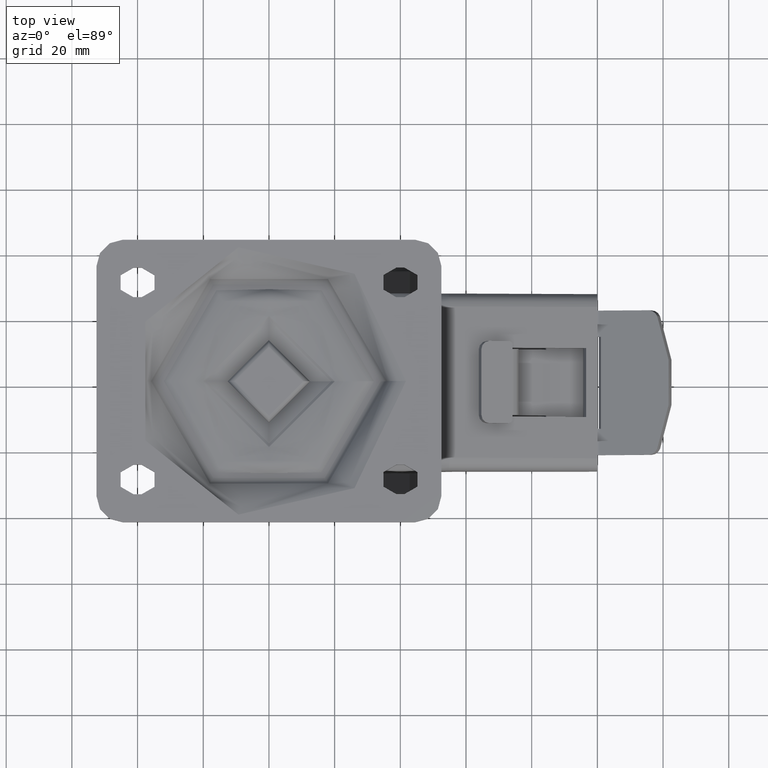
[diagram: clean part render]
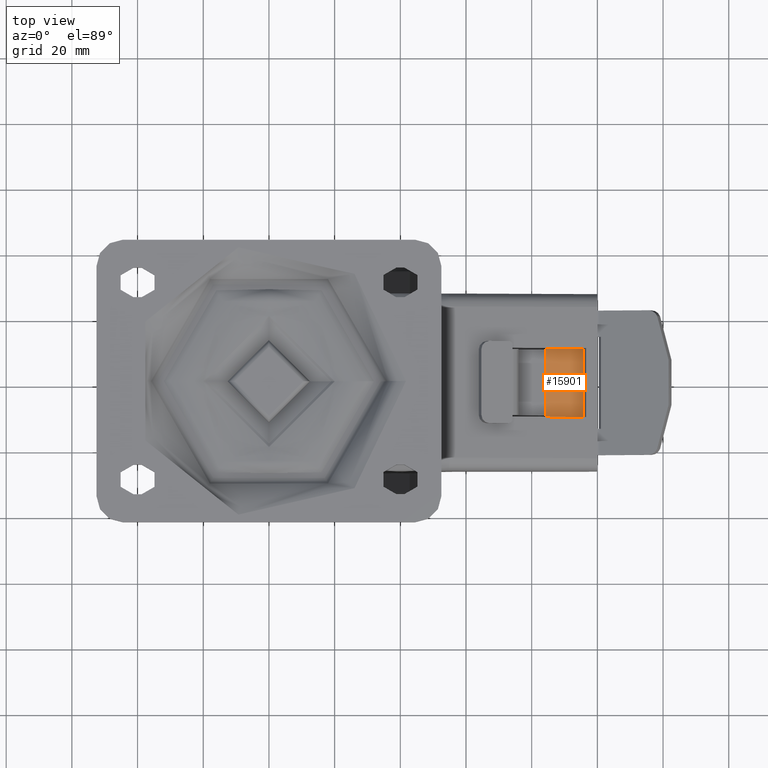
[diagram: same view with one face highlighted and labeled with its STEP entity id]
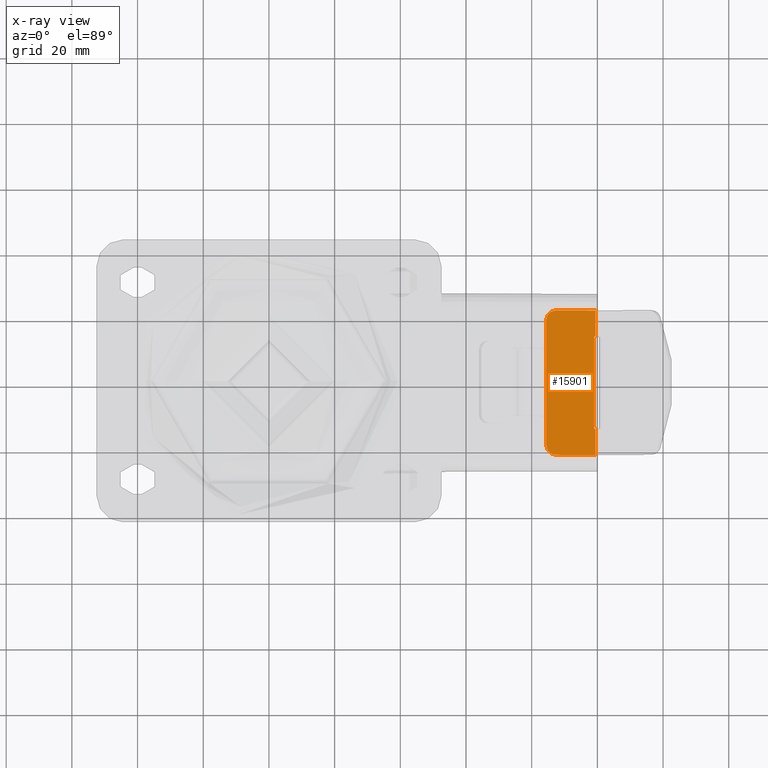
[diagram: x-ray of the same camera — body ghosted, the highlighted face saturated]
A machine part, top view. The second image highlights one B-rep face of the part: STEP entity #15901.
The next image is the same camera in x-ray: the body ghosted, the highlighted face saturated — about 0% of this face is hidden behind the body in this view.
In plain terms, the highlighted planar face has unit normal (0.2169, 0, 0.9762).
Its self-contained STEP definition (entity closure, byte-faithful):
#1200=PLANE('',#17364);
#1831=FACE_OUTER_BOUND('',#2825,.T.);
#2825=EDGE_LOOP('',(#12043,#12044,#12045,#12046,#12047,#12048,#12049,#12050,
#12051,#12052,#12053,#12054));
#4022=LINE('',#26310,#5114);
#4024=LINE('',#26319,#5116);
#4027=LINE('',#26325,#5119);
#4032=LINE('',#26334,#5124);
#4037=LINE('',#26342,#5129);
#4043=LINE('',#26352,#5135);
#4044=LINE('',#26354,#5136);
#4045=LINE('',#26356,#5137);
#4046=LINE('',#26357,#5138);
#4047=LINE('',#26358,#5139);
#5114=VECTOR('',#20197,1000.);
#5116=VECTOR('',#20205,1000.);
#5119=VECTOR('',#20210,1000.);
#5124=VECTOR('',#20217,1000.);
#5129=VECTOR('',#20226,1000.);
#5135=VECTOR('',#20236,1000.);
#5136=VECTOR('',#20237,1000.);
#5137=VECTOR('',#20238,1000.);
#5138=VECTOR('',#20239,1000.);
#5139=VECTOR('',#20240,1000.);
#5959=CIRCLE('',#17343,3.);
#5962=CIRCLE('',#17347,3.);
#7121=VERTEX_POINT('',#26268);
#7122=VERTEX_POINT('',#26269);
#7127=VERTEX_POINT('',#26280);
#7128=VERTEX_POINT('',#26282);
#7137=VERTEX_POINT('',#26303);
#7140=VERTEX_POINT('',#26308);
#7141=VERTEX_POINT('',#26312);
#7144=VERTEX_POINT('',#26317);
#7146=VERTEX_POINT('',#26323);
#7149=VERTEX_POINT('',#26332);
#7153=VERTEX_POINT('',#26353);
#7154=VERTEX_POINT('',#26355);
#8864=EDGE_CURVE('',#7121,#7122,#5959,.T.);
#8870=EDGE_CURVE('',#7127,#7128,#5962,.T.);
#8883=EDGE_CURVE('',#7140,#7137,#4022,.T.);
#8887=EDGE_CURVE('',#7144,#7141,#4024,.T.);
#8890=EDGE_CURVE('',#7140,#7146,#4027,.T.);
#8895=EDGE_CURVE('',#7146,#7149,#4032,.T.);
#8900=EDGE_CURVE('',#7149,#7141,#4037,.T.);
#8906=EDGE_CURVE('',#7144,#7122,#4043,.T.);
#8907=EDGE_CURVE('',#7153,#7121,#4044,.T.);
#8908=EDGE_CURVE('',#7154,#7153,#4045,.T.);
#8909=EDGE_CURVE('',#7128,#7154,#4046,.T.);
#8910=EDGE_CURVE('',#7127,#7137,#4047,.T.);
#12043=ORIENTED_EDGE('',*,*,#8890,.T.);
#12044=ORIENTED_EDGE('',*,*,#8895,.T.);
#12045=ORIENTED_EDGE('',*,*,#8900,.T.);
#12046=ORIENTED_EDGE('',*,*,#8887,.F.);
#12047=ORIENTED_EDGE('',*,*,#8906,.T.);
#12048=ORIENTED_EDGE('',*,*,#8864,.F.);
#12049=ORIENTED_EDGE('',*,*,#8907,.F.);
#12050=ORIENTED_EDGE('',*,*,#8908,.F.);
#12051=ORIENTED_EDGE('',*,*,#8909,.F.);
#12052=ORIENTED_EDGE('',*,*,#8870,.F.);
#12053=ORIENTED_EDGE('',*,*,#8910,.T.);
#12054=ORIENTED_EDGE('',*,*,#8883,.F.);
#15901=ADVANCED_FACE('',(#1831),#1200,.T.);
#17343=AXIS2_PLACEMENT_3D('',#26270,#20162,#20163);
#17347=AXIS2_PLACEMENT_3D('',#26283,#20173,#20174);
#17364=AXIS2_PLACEMENT_3D('',#26351,#20234,#20235);
#20162=DIRECTION('center_axis',(-0.216930457818644,1.17643464896431E-17,
-0.976187060183956));
#20163=DIRECTION('ref_axis',(-0.690268489962634,0.707106781186549,0.153392997769465));
#20173=DIRECTION('center_axis',(-0.216930457818644,-1.17643464896431E-17,
-0.976187060183956));
#20174=DIRECTION('ref_axis',(-0.690268489962634,-0.707106781186549,0.153392997769465));
#20197=DIRECTION('',(0.,-1.,0.));
#20205=DIRECTION('',(0.,-1.,0.));
#20210=DIRECTION('',(-0.976187060183956,0.,0.216930457818644));
#20217=DIRECTION('',(2.62395147626744E-17,1.,-5.83100328059396E-18));
#20226=DIRECTION('',(0.976187060183956,0.,-0.216930457818644));
#20234=DIRECTION('center_axis',(0.216930457818644,0.,0.976187060183956));
#20235=DIRECTION('ref_axis',(-0.976187060183956,0.,0.216930457818644));
#20236=DIRECTION('',(-0.976187060183956,0.,0.216930457818644));
#20237=DIRECTION('',(0.,1.,0.));
#20238=DIRECTION('',(0.,1.,0.));
#20239=DIRECTION('',(0.,1.,0.));
#20240=DIRECTION('',(0.976187060183956,0.,-0.216930457818644));
#26268=CARTESIAN_POINT('',(84.3810070370567,19.,-30.1266879892541));
#26269=CARTESIAN_POINT('',(87.3095682176086,22.,-30.77747936271));
#26270=CARTESIAN_POINT('Origin',(87.3095682176086,19.,-30.77747936271));
#26280=CARTESIAN_POINT('',(87.3095682176086,-22.,-30.77747936271));
#26282=CARTESIAN_POINT('',(84.3810070370567,-19.,-30.1266879892541));
#26283=CARTESIAN_POINT('Origin',(87.3095682176086,-19.,-30.77747936271));
#26303=CARTESIAN_POINT('',(99.4212183156624,-22.,-33.4689571622774));
#26308=CARTESIAN_POINT('',(99.4212183156624,-14.,-33.4689571622774));
#26310=CARTESIAN_POINT('',(99.4212183156624,0.,-33.4689571622774));
#26312=CARTESIAN_POINT('',(99.4212183156624,14.,-33.4689571622774));
#26317=CARTESIAN_POINT('',(99.4212183156624,22.,-33.4689571622774));
#26319=CARTESIAN_POINT('',(99.4212183156624,0.,-33.4689571622774));
#26323=CARTESIAN_POINT('',(98.9786982000151,-14.,-33.3706193588002));
#26325=CARTESIAN_POINT('',(96.0726943893638,-14.,-32.7248407342111));
#26332=CARTESIAN_POINT('',(98.9786982000151,14.,-33.3706193588002));
#26334=CARTESIAN_POINT('',(98.9786982000151,-9.34574656625069E-17,-33.3706193588002));
#26342=CARTESIAN_POINT('',(96.0726943893638,14.,-32.7248407342111));
#26351=CARTESIAN_POINT('Origin',(92.1905035185284,0.,-31.8621316518032));
#26352=CARTESIAN_POINT('',(100.,22.,-33.5975753143524));
#26353=CARTESIAN_POINT('',(84.3810070370567,10.,-30.1266879892541));
#26354=CARTESIAN_POINT('',(84.3810070370567,0.,-30.1266879892541));
#26355=CARTESIAN_POINT('',(84.3810070370567,-10.,-30.1266879892541));
#26356=CARTESIAN_POINT('',(84.3810070370567,0.,-30.1266879892541));
#26357=CARTESIAN_POINT('',(84.3810070370567,0.,-30.1266879892541));
#26358=CARTESIAN_POINT('',(100.,-22.,-33.5975753143524));